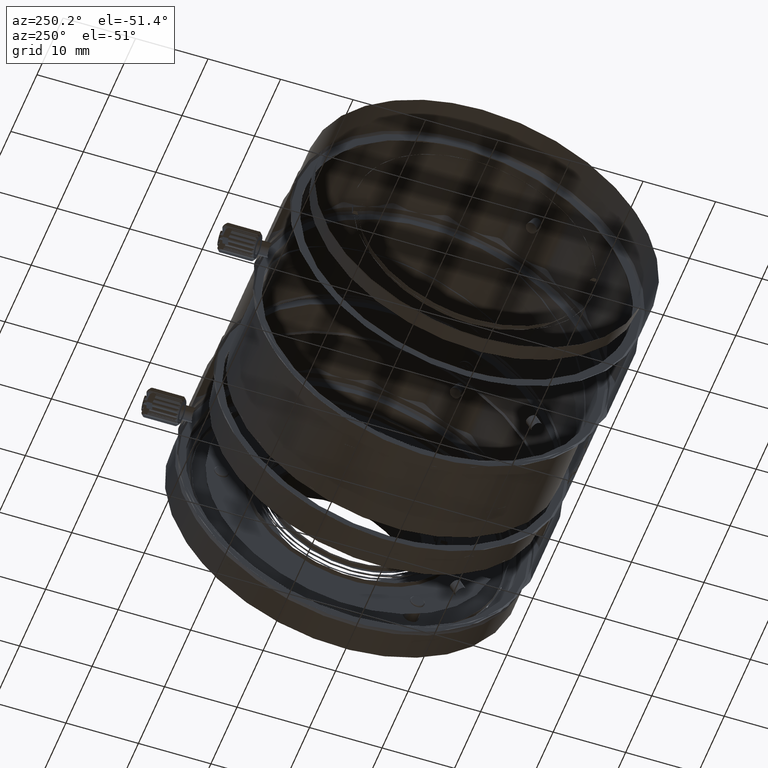
[diagram: clean part render]
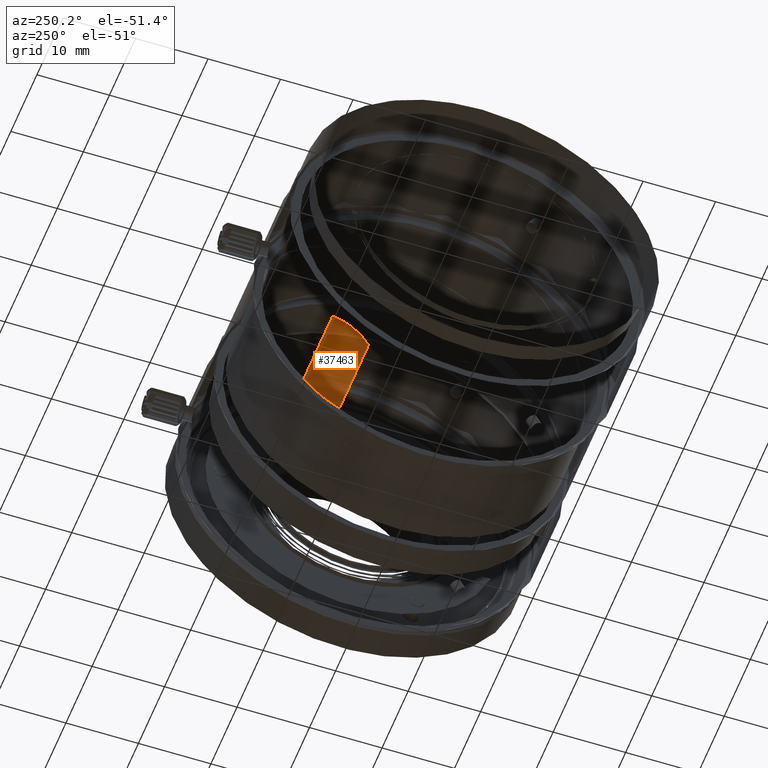
[diagram: same view with one face highlighted and labeled with its STEP entity id]
A machine part, auxiliary view. The second image highlights one B-rep face of the part: STEP entity #37463.
In plain terms, the highlighted face is a freeform B-spline surface patch.
Its self-contained STEP definition (entity closure, byte-faithful):
#136 = CARTESIAN_POINT ( 'NONE',  ( 1.099925139353237435, 16.50308614469076574, -18.24304476933025398 ) ) ;
#490 = CARTESIAN_POINT ( 'NONE',  ( 12.88211237190570380, 16.61220655309553962, -18.16808656165514080 ) ) ;
#504 = FACE_OUTER_BOUND ( 'NONE', #1954, .T. ) ;
#1367 = CARTESIAN_POINT ( 'NONE',  ( 12.57548637867035879, 12.93882819818271912, -21.30300692487909942 ) ) ;
#1930 = CARTESIAN_POINT ( 'NONE',  ( 13.07200000000000095, 17.88296288307500248, -17.36176885873991793 ) ) ;
#1954 = EDGE_LOOP ( 'NONE', ( #39771, #2095, #39364, #8426, #28873, #2620 ) ) ;
#2095 = ORIENTED_EDGE ( 'NONE', *, *, #39505, .F. ) ;
#2281 = CARTESIAN_POINT ( 'NONE',  ( 1.127140234095033389, 13.96105232441536259, -20.28766233859214196 ) ) ;
#2311 = EDGE_CURVE ( 'NONE', #36989, #39708, #32661, .T. ) ;
#2437 = EDGE_CURVE ( 'NONE', #24796, #5138, #21417, .T. ) ;
#2585 = CARTESIAN_POINT ( 'NONE',  ( 1.117887628326575733, 14.00811304195724283, -20.24395082214483210 ) ) ;
#2620 = ORIENTED_EDGE ( 'NONE', *, *, #25661, .F. ) ;
#3761 = CARTESIAN_POINT ( 'NONE',  ( 12.90875044115448667, 14.15577732412139333, -20.10840403945364230 ) ) ;
#5138 = VERTEX_POINT ( 'NONE', #23875 ) ;
#6077 = CARTESIAN_POINT ( 'NONE',  ( 0.9280000000000000471, 17.88296288307500248, -17.36176885873991793 ) ) ;
#6724 = CARTESIAN_POINT ( 'NONE',  ( 1.293723889372109692, 13.30249497672118864, -20.92458160877677997 ) ) ;
#7034 = B_SPLINE_CURVE_WITH_KNOTS ( 'NONE', 1,
 ( #50774, #54873 ),
 .UNSPECIFIED., .F., .F.,
 ( 2, 2 ),
 ( -1.000000000000000000, 0.0000000000000000000 ),
 .UNSPECIFIED. ) ;
#8426 = ORIENTED_EDGE ( 'NONE', *, *, #2437, .F. ) ;
#8467 = CARTESIAN_POINT ( 'NONE',  ( 12.71479554623340924, 13.29984164732879570, -20.92074613705120356 ) ) ;
#8980 = CARTESIAN_POINT ( 'NONE',  ( 1.285204454050519196, 17.42984899681298927, -17.62849315054756971 ) ) ;
#9613 = CARTESIAN_POINT ( 'NONE',  ( 12.78519967834273352, 17.10181061617952025, -17.84280988363965648 ) ) ;
#9913 = CARTESIAN_POINT ( 'NONE',  ( 1.424513621921750017, 12.93882819236935866, -21.30300693024125280 ) ) ;
#10848 = CARTESIAN_POINT ( 'NONE',  ( 1.214800321572965247, 13.58188658569517315, -20.64873235007570784 ) ) ;
#11980 = B_SPLINE_CURVE_WITH_KNOTS ( 'NONE', 3,
 ( #40120, #13373, #30160, #40414, #57155, #58004, #34863, #136, #35150, #8980, #17223 ),
 .UNSPECIFIED., .F., .F.,
 ( 4, 2, 1, 2, 2, 4 ),
 ( -1.000000000000000000, -0.7499999999999928946, -0.6249999999999894529, -0.5624999999999888978, -0.4999999999999884537, 0.0000000000000000000 ),
 .UNSPECIFIED. ) ;
#12863 = CARTESIAN_POINT ( 'NONE',  ( 12.99093172086006831, 14.85758277067827748, -19.49403153264848498 ) ) ;
#13091 = CARTESIAN_POINT ( 'NONE',  ( 12.57548637867035879, 12.93882819818271912, -21.30300692487909942 ) ) ;
#13373 = CARTESIAN_POINT ( 'NONE',  ( 1.000000000000000222, 15.48065558563984823, -18.99133138220627615 ) ) ;
#13428 = CARTESIAN_POINT ( 'NONE',  ( 12.96372688400423456, 16.11640620451339956, -18.50866725678883284 ) ) ;
#15529 = CARTESIAN_POINT ( 'NONE',  ( 12.99999999925223904, 15.27176281209900033, -19.15785114800184985 ) ) ;
#16414 = CARTESIAN_POINT ( 'NONE',  ( 12.82002696962725175, 13.67147632647871092, -20.55387429038835023 ) ) ;
#16649 = CARTESIAN_POINT ( 'NONE',  ( 1.000000000620882012, 15.27176281806980107, -19.15785114339970363 ) ) ;
#16993 = CARTESIAN_POINT ( 'NONE',  ( 12.57548637867035879, 12.93882819818271912, -21.30300692487909942 ) ) ;
#17223 = CARTESIAN_POINT ( 'NONE',  ( 1.424513621059793955, 17.88296287178145150, -17.36176886627465166 ) ) ;
#18433 = CARTESIAN_POINT ( 'NONE',  ( 12.70627611031845206, 17.43299654246229835, -17.63193465481731437 ) ) ;
#19012 = CARTESIAN_POINT ( 'NONE',  ( 12.57548637843268047, 17.88296287792455175, -17.36176886187080015 ) ) ;
#20234 = CARTESIAN_POINT ( 'NONE',  ( 1.036273116067235378, 14.45063961113399209, -19.83654020707120580 ) ) ;
#21394 = EDGE_CURVE ( 'NONE', #5138, #37679, #34950, .T. ) ;
#21417 = B_SPLINE_CURVE_WITH_KNOTS ( 'NONE', 3,
 ( #19012, #54239, #18433, #9613, #46026, #27244, #27525, #490, #13428, #31372, #22826 ),
 .UNSPECIFIED., .F., .F.,
 ( 4, 2, 1, 2, 2, 4 ),
 ( -1.000000000000000000, -0.7499999999999997780, -0.6249999999999982236, -0.5624999999999988898, -0.4999999999999996669, 0.0000000000000000000 ),
 .UNSPECIFIED. ) ;
#22675 =( BOUNDED_SURFACE ( )  B_SPLINE_SURFACE ( 1, 3, ( 
 ( #31955, #27541, #23408, #1930 ),
 ( #28990, #28699, #55690, #6077 ) ),
 .UNSPECIFIED., .F., .F., .F. ) 
 B_SPLINE_SURFACE_WITH_KNOTS ( ( 2, 2 ),
 ( 4, 4 ),
 ( 0.0000000000000000000, 1.000000000000000000 ),
 ( 0.0000000000000000000, 1.000000000000000000 ),
 .UNSPECIFIED. ) 
 GEOMETRIC_REPRESENTATION_ITEM ( )  RATIONAL_B_SPLINE_SURFACE ( (
 ( 1.000000000000000000, 0.9933864840378161531, 0.9933864840378161531, 1.000000000000000000),
 ( 1.000000000000000000, 0.9933864840378161531, 0.9933864840378161531, 1.000000000000000000) ) ) 
 REPRESENTATION_ITEM ( '' )  SURFACE ( )  );
#22826 = CARTESIAN_POINT ( 'NONE',  ( 12.99999999925223904, 15.27176281209900033, -19.15785114800184985 ) ) ;
#23408 = CARTESIAN_POINT ( 'NONE',  ( 13.07199999999999918, 16.05458489946942890, -18.43803872290616042 ) ) ;
#23875 = CARTESIAN_POINT ( 'NONE',  ( 12.99999999925223904, 15.27176281209900033, -19.15785114800184985 ) ) ;
#24618 = CARTESIAN_POINT ( 'NONE',  ( 1.147058513208350172, 13.86547212404093798, -20.37720209426011309 ) ) ;
#24796 = VERTEX_POINT ( 'NONE', #49348 ) ;
#25661 = EDGE_CURVE ( 'NONE', #39708, #38324, #11980, .T. ) ;
#26677 = CARTESIAN_POINT ( 'NONE',  ( 12.99999999999999645, 15.06287004469522728, -19.32437090819757231 ) ) ;
#27244 = CARTESIAN_POINT ( 'NONE',  ( 12.85294148689901839, 16.77390020071041121, -18.05873623662399652 ) ) ;
#27525 = CARTESIAN_POINT ( 'NONE',  ( 12.87285976606825066, 16.66530822393233890, -18.13195320319495352 ) ) ;
#27541 = CARTESIAN_POINT ( 'NONE',  ( 13.07199999999999918, 14.39556806592048410, -19.76053107352571558 ) ) ;
#28699 = CARTESIAN_POINT ( 'NONE',  ( 0.9280000000000000471, 14.39556806592048410, -19.76053107352571558 ) ) ;
#28757 = CARTESIAN_POINT ( 'NONE',  ( 1.178533326083258448, 13.72274513779480642, -20.51207992363633537 ) ) ;
#28873 = ORIENTED_EDGE ( 'NONE', *, *, #54213, .F. ) ;
#28908 = CARTESIAN_POINT ( 'NONE',  ( 1.424513621921750017, 12.93882819236935866, -21.30300693024125280 ) ) ;
#28990 = CARTESIAN_POINT ( 'NONE',  ( 0.9280000000000000471, 12.93882818535879053, -21.30300693778651322 ) ) ;
#30160 = CARTESIAN_POINT ( 'NONE',  ( 1.009068279122058875, 15.69180652608489268, -18.82902650639775999 ) ) ;
#31372 = CARTESIAN_POINT ( 'NONE',  ( 13.00000000049247362, 15.68954835073270715, -18.82481162254498130 ) ) ;
#31955 = CARTESIAN_POINT ( 'NONE',  ( 13.07200000000000095, 12.93882818535879053, -21.30300693778651322 ) ) ;
#32661 = B_SPLINE_CURVE_WITH_KNOTS ( 'NONE', 3,
 ( #33168, #51072, #6724, #10848, #28757, #24618, #2281, #2585, #20234, #38167, #47554 ),
 .UNSPECIFIED., .F., .F.,
 ( 4, 2, 1, 2, 2, 4 ),
 ( -1.000000000000000000, -0.7499999999999991118, -0.6249999999999985567, -0.5624999999999983347, -0.4999999999999981126, 0.0000000000000000000 ),
 .UNSPECIFIED. ) ;
#33168 = CARTESIAN_POINT ( 'NONE',  ( 1.424513621921750017, 12.93882819236935866, -21.30300693024125280 ) ) ;
#34633 = CARTESIAN_POINT ( 'NONE',  ( 12.94672386005293419, 14.40371852131202957, -19.88534689304361436 ) ) ;
#34863 = CARTESIAN_POINT ( 'NONE',  ( 1.091249558665720709, 16.44715540687830924, -18.28182222092520703 ) ) ;
#34950 = B_SPLINE_CURVE_WITH_KNOTS ( 'NONE', 3,
 ( #15529, #26677, #12863, #53386, #34633, #38749, #3761, #48712, #16414, #8467, #16993 ),
 .UNSPECIFIED., .F., .F.,
 ( 4, 2, 1, 2, 2, 4 ),
 ( -1.000000000000000000, -0.7499999999999963363, -0.6249999999999951150, -0.5624999999999948930, -0.4999999999999947820, 0.0000000000000000000 ),
 .UNSPECIFIED. ) ;
#35150 = CARTESIAN_POINT ( 'NONE',  ( 1.179973030356491925, 16.98936941170217096, -17.90900165598999294 ) ) ;
#36989 = VERTEX_POINT ( 'NONE', #28908 ) ;
#37463 = ADVANCED_FACE ( 'NONE', ( #504 ), #22675, .F. ) ;
#37679 = VERTEX_POINT ( 'NONE', #13091 ) ;
#38167 = CARTESIAN_POINT ( 'NONE',  ( 0.9999999995075280479, 14.85397727991044725, -19.49089066826316596 ) ) ;
#38324 = VERTEX_POINT ( 'NONE', #52890 ) ;
#38749 = CARTESIAN_POINT ( 'NONE',  ( 12.92461992964936002, 14.25475642706194002, -20.01888145239228933 ) ) ;
#39364 = ORIENTED_EDGE ( 'NONE', *, *, #21394, .F. ) ;
#39505 = EDGE_CURVE ( 'NONE', #37679, #36989, #40092, .T. ) ;
#39708 = VERTEX_POINT ( 'NONE', #16649 ) ;
#39771 = ORIENTED_EDGE ( 'NONE', *, *, #2311, .F. ) ;
#40092 = B_SPLINE_CURVE_WITH_KNOTS ( 'NONE', 1,
 ( #1367, #9913 ),
 .UNSPECIFIED., .F., .F.,
 ( 2, 2 ),
 ( -1.000000000000000000, 0.0000000000000000000 ),
 .UNSPECIFIED. ) ;
#40120 = CARTESIAN_POINT ( 'NONE',  ( 1.000000000620882012, 15.27176281806980107, -19.15785114339970363 ) ) ;
#40414 = CARTESIAN_POINT ( 'NONE',  ( 1.036273116488237056, 16.01284636628517788, -18.59126409191398821 ) ) ;
#46026 = CARTESIAN_POINT ( 'NONE',  ( 12.82146667393544170, 16.93719867121445333, -17.94966456733847693 ) ) ;
#47554 = CARTESIAN_POINT ( 'NONE',  ( 1.000000000620882012, 15.27176281806980107, -19.15785114339970363 ) ) ;
#48712 = CARTESIAN_POINT ( 'NONE',  ( 12.90007486040758700, 14.10550843836882429, -20.15428407119027909 ) ) ;
#49348 = CARTESIAN_POINT ( 'NONE',  ( 12.57548637843268047, 17.88296287792455175, -17.36176886187080015 ) ) ;
#50774 = CARTESIAN_POINT ( 'NONE',  ( 1.424513621059793955, 17.88296287178145150, -17.36176886627465166 ) ) ;
#51072 = CARTESIAN_POINT ( 'NONE',  ( 1.354859036997847488, 13.11933491422427167, -21.11187653675705889 ) ) ;
#52890 = CARTESIAN_POINT ( 'NONE',  ( 1.424513621059793955, 17.88296287178145150, -17.36176886627465166 ) ) ;
#53386 = CARTESIAN_POINT ( 'NONE',  ( 12.96372688344029100, 14.55424201183341992, -19.75399677798062115 ) ) ;
#54213 = EDGE_CURVE ( 'NONE', #38324, #24796, #7034, .T. ) ;
#54239 = CARTESIAN_POINT ( 'NONE',  ( 12.64514096251711273, 17.65640593906913125, -17.49513100361739504 ) ) ;
#54873 = CARTESIAN_POINT ( 'NONE',  ( 12.57548637843268047, 17.88296287792455175, -17.36176886187080015 ) ) ;
#55690 = CARTESIAN_POINT ( 'NONE',  ( 0.9280000000000000471, 16.05458489946942890, -18.43803872290616042 ) ) ;
#57155 = CARTESIAN_POINT ( 'NONE',  ( 1.053276139842098003, 16.17444373098818033, -18.47380573487105337 ) ) ;
#58004 = CARTESIAN_POINT ( 'NONE',  ( 1.075380070202117233, 16.33782254425095815, -18.35835640646826761 ) ) ;